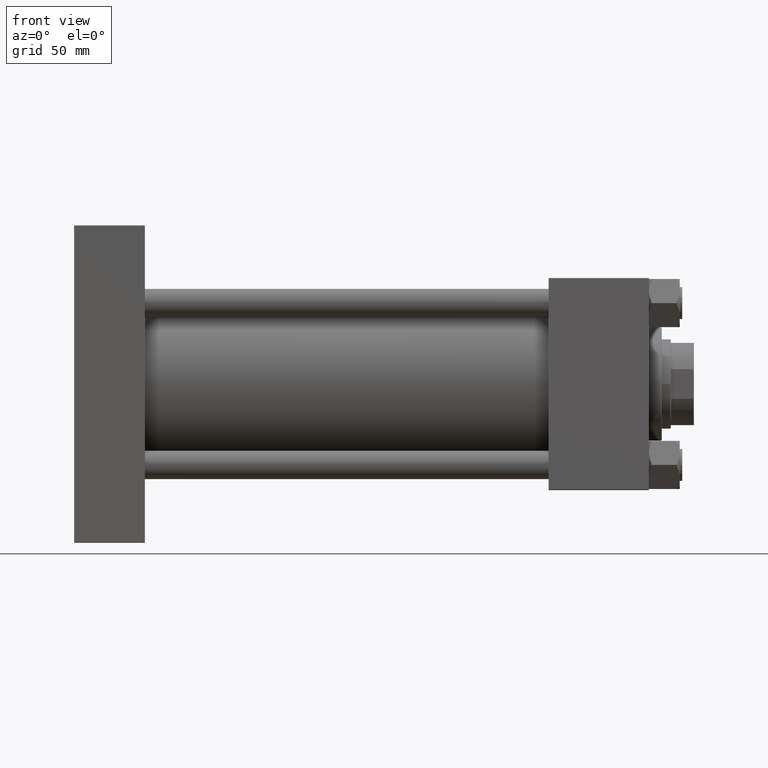
[diagram: clean part render]
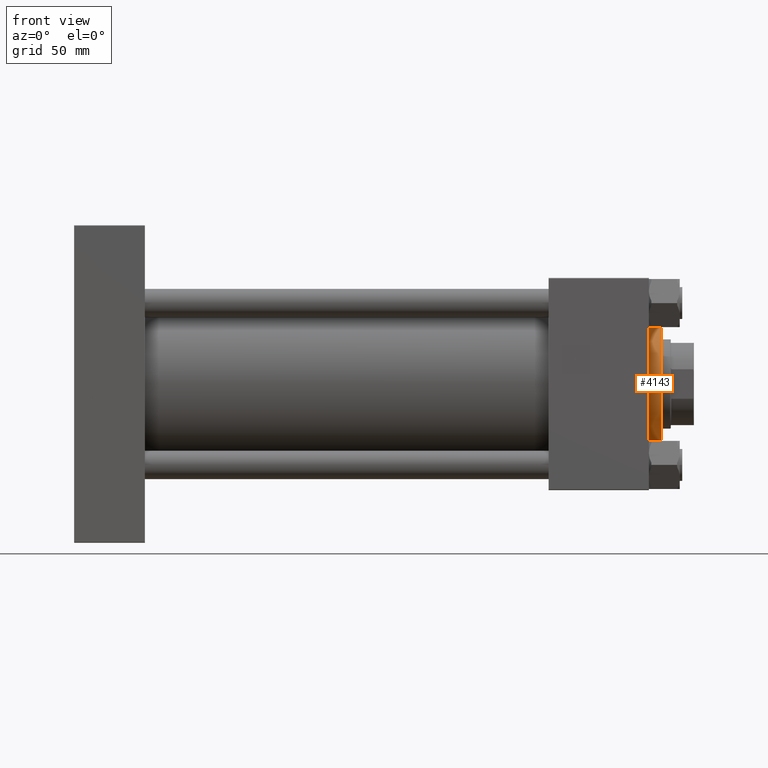
[diagram: same view with one face highlighted and labeled with its STEP entity id]
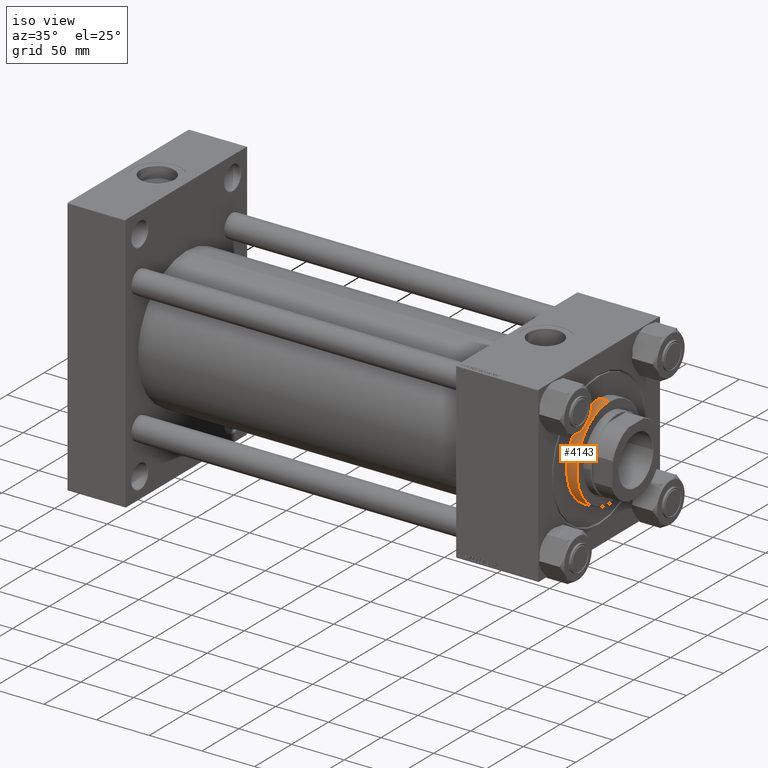
[diagram: same view with one face highlighted and labeled with its STEP entity id]
A machine part, front view. The second image highlights one B-rep face of the part: STEP entity #4143.
A second angle (iso view) of the same face is appended — the face is thin or edge-on in the first view.
In plain terms, the highlighted cylindrical surface (partial cylindrical patch) has radius 44 mm, axis along (-1, -0, 0).
Its self-contained STEP definition (entity closure, byte-faithful):
#113 = VECTOR ( 'NONE', #24763, 1000.000000000000000 ) ;
#1691 = LINE ( 'NONE', #33675, #19952 ) ;
#1752 = VERTEX_POINT ( 'NONE', #28971 ) ;
#3357 = DIRECTION ( 'NONE',  ( 0.000000000000000000, 0.000000000000000000, -1.000000000000000000 ) ) ;
#3893 = CIRCLE ( 'NONE', #37045, 44.00000000000000000 ) ;
#4143 = ADVANCED_FACE ( 'NONE', ( #34239 ), #46742, .T. ) ;
#8400 = CARTESIAN_POINT ( 'NONE',  ( 44.00000000000000000, 5.388445916248353619E-15, 28.69999999999999929 ) ) ;
#8511 = CARTESIAN_POINT ( 'NONE',  ( -44.00000000000000000, 0.000000000000000000, 38.69999999999999574 ) ) ;
#8824 = ORIENTED_EDGE ( 'NONE', *, *, #15823, .T. ) ;
#8942 = DIRECTION ( 'NONE',  ( 0.000000000000000000, 0.000000000000000000, 1.000000000000000000 ) ) ;
#11938 = VERTEX_POINT ( 'NONE', #39839 ) ;
#13715 = DIRECTION ( 'NONE',  ( 1.000000000000000000, 0.000000000000000000, 0.000000000000000000 ) ) ;
#13840 = EDGE_CURVE ( 'NONE', #11938, #41520, #1691, .T. ) ;
#14870 = ORIENTED_EDGE ( 'NONE', *, *, #13840, .F. ) ;
#15823 = EDGE_CURVE ( 'NONE', #11938, #17684, #3893, .T. ) ;
#17684 = VERTEX_POINT ( 'NONE', #49815 ) ;
#17931 = DIRECTION ( 'NONE',  ( -0.000000000000000000, -0.000000000000000000, -1.000000000000000000 ) ) ;
#19952 = VECTOR ( 'NONE', #17931, 1000.000000000000000 ) ;
#21146 = ORIENTED_EDGE ( 'NONE', *, *, #34336, .T. ) ;
#24763 = DIRECTION ( 'NONE',  ( -0.000000000000000000, -0.000000000000000000, -1.000000000000000000 ) ) ;
#25486 = DIRECTION ( 'NONE',  ( -0.000000000000000000, -0.000000000000000000, -1.000000000000000000 ) ) ;
#25742 = CARTESIAN_POINT ( 'NONE',  ( 0.000000000000000000, 0.000000000000000000, 38.69999999999999574 ) ) ;
#28763 = LINE ( 'NONE', #8511, #113 ) ;
#28971 = CARTESIAN_POINT ( 'NONE',  ( -44.00000000000000000, 0.000000000000000000, 28.69999999999999929 ) ) ;
#29960 = CARTESIAN_POINT ( 'NONE',  ( 0.000000000000000000, 0.000000000000000000, 28.69999999999999929 ) ) ;
#31882 = AXIS2_PLACEMENT_3D ( 'NONE', #25742, #25486, #42735 ) ;
#33276 = ORIENTED_EDGE ( 'NONE', *, *, #41178, .T. ) ;
#33675 = CARTESIAN_POINT ( 'NONE',  ( 44.00000000000000000, 5.388445916248353619E-15, 38.69999999999999574 ) ) ;
#34022 = CIRCLE ( 'NONE', #34847, 44.00000000000000000 ) ;
#34239 = FACE_OUTER_BOUND ( 'NONE', #48075, .T. ) ;
#34336 = EDGE_CURVE ( 'NONE', #1752, #41520, #34022, .T. ) ;
#34847 = AXIS2_PLACEMENT_3D ( 'NONE', #29960, #8942, #13715 ) ;
#37045 = AXIS2_PLACEMENT_3D ( 'NONE', #52595, #3357, #40100 ) ;
#39839 = CARTESIAN_POINT ( 'NONE',  ( 44.00000000000000000, 5.388445916248353619E-15, 38.20000000000002416 ) ) ;
#40100 = DIRECTION ( 'NONE',  ( 1.000000000000000000, 0.000000000000000000, 0.000000000000000000 ) ) ;
#41178 = EDGE_CURVE ( 'NONE', #17684, #1752, #28763, .T. ) ;
#41520 = VERTEX_POINT ( 'NONE', #8400 ) ;
#42735 = DIRECTION ( 'NONE',  ( -1.000000000000000000, 0.000000000000000000, 0.000000000000000000 ) ) ;
#46742 = CYLINDRICAL_SURFACE ( 'NONE', #31882, 44.00000000000000000 ) ;
#48075 = EDGE_LOOP ( 'NONE', ( #14870, #8824, #33276, #21146 ) ) ;
#49815 = CARTESIAN_POINT ( 'NONE',  ( -44.00000000000000000, 0.000000000000000000, 38.20000000000002416 ) ) ;
#52595 = CARTESIAN_POINT ( 'NONE',  ( 0.000000000000000000, 0.000000000000000000, 38.20000000000002416 ) ) ;